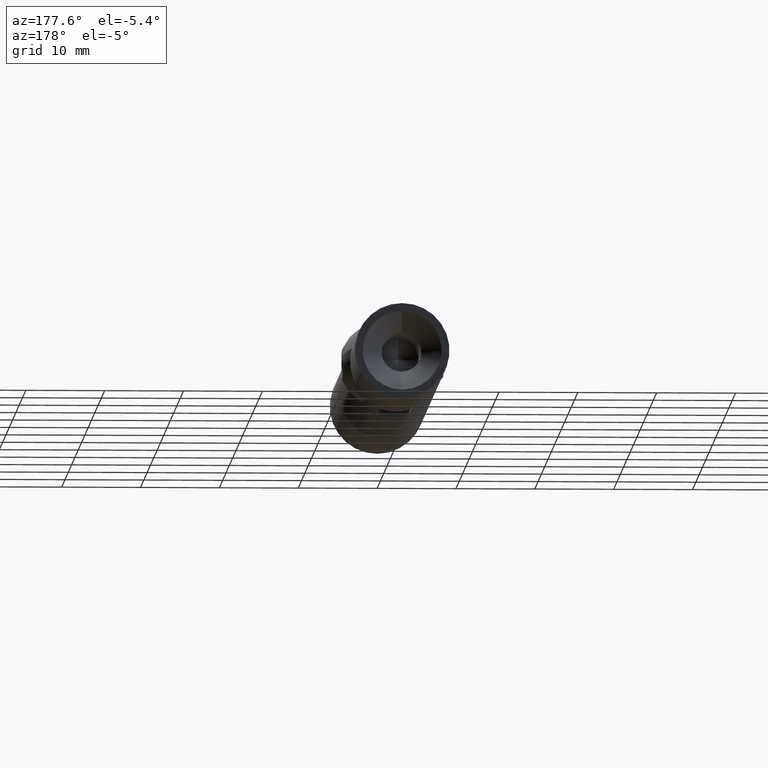
[diagram: clean part render]
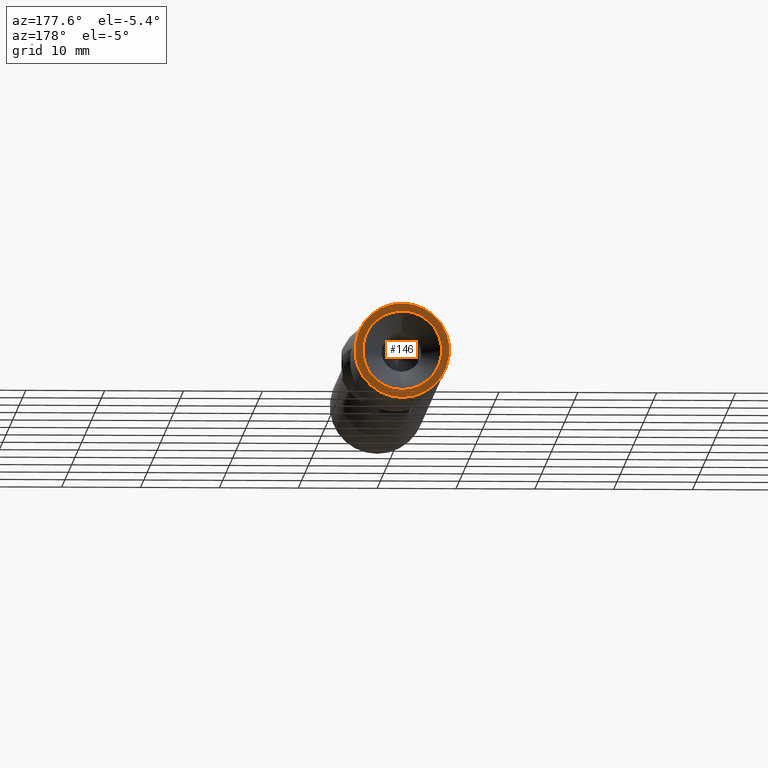
[diagram: same view with one face highlighted and labeled with its STEP entity id]
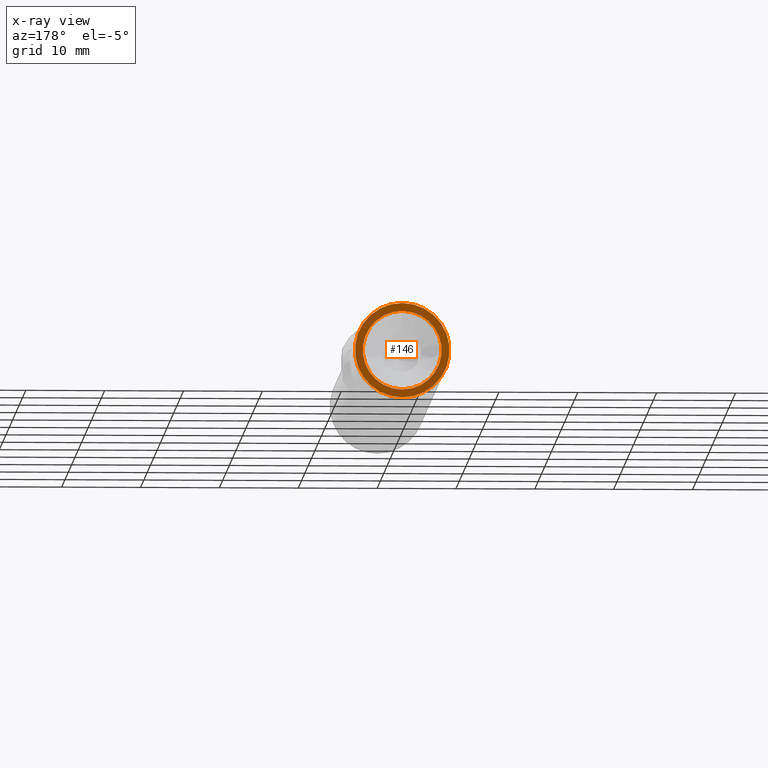
[diagram: x-ray of the same camera — body ghosted, the highlighted face saturated]
A machine part, auxiliary view. The second image highlights one B-rep face of the part: STEP entity #146.
The next image is the same camera in x-ray: the body ghosted, the highlighted face saturated — about 0% of this face is hidden behind the body in this view.
In plain terms, the highlighted planar face has unit normal (0, 1, -0).
Its self-contained STEP definition (entity closure, byte-faithful):
#146 = ADVANCED_FACE ( 'NONE', ( #450, #12626 ), #3208, .T. ) ;
#150 = AXIS2_PLACEMENT_3D ( 'NONE', #12198, #14807, #7144 ) ;
#450 = FACE_BOUND ( 'NONE', #14000, .T. ) ;
#518 = CARTESIAN_POINT ( 'NONE',  ( 0.0000000000000000000, 25.49999999999999600, 0.0000000000000000000 ) ) ;
#2140 = AXIS2_PLACEMENT_3D ( 'NONE', #518, #9687, #13339 ) ;
#2307 = AXIS2_PLACEMENT_3D ( 'NONE', #8566, #5872, #10951 ) ;
#3208 = PLANE ( 'NONE',  #150 ) ;
#3467 = CARTESIAN_POINT ( 'NONE',  ( 0.0000000000000000000, 25.49999999999999600, 0.0000000000000000000 ) ) ;
#4090 = VERTEX_POINT ( 'NONE', #13478 ) ;
#4943 = DIRECTION ( 'NONE',  ( 6.270394377842564300E-033, 1.000000000000000000, -5.200459125639017200E-051 ) ) ;
#5182 = EDGE_LOOP ( 'NONE', ( #13796, #5191 ) ) ;
#5191 = ORIENTED_EDGE ( 'NONE', *, *, #6338, .T. ) ;
#5551 = CIRCLE ( 'NONE', #16053, 5.000000000000000000 ) ;
#5872 = DIRECTION ( 'NONE',  ( 6.270394377842564300E-033, 1.000000000000000000, -5.200459125639017200E-051 ) ) ;
#6338 = EDGE_CURVE ( 'NONE', #6796, #4090, #7069, .T. ) ;
#6796 = VERTEX_POINT ( 'NONE', #14665 ) ;
#7069 = CIRCLE ( 'NONE', #2307, 6.000000000000000900 ) ;
#7140 = CARTESIAN_POINT ( 'NONE',  ( 0.0000000000000000000, 25.49999999999999600, 0.0000000000000000000 ) ) ;
#7144 = DIRECTION ( 'NONE',  ( -2.696301922142130200E-033, 8.701279117450272000E-052, 1.000000000000000000 ) ) ;
#7789 = VERTEX_POINT ( 'NONE', #9923 ) ;
#8460 = DIRECTION ( 'NONE',  ( 6.270394377842564300E-033, 1.000000000000000000, -5.200459125639017200E-051 ) ) ;
#8566 = CARTESIAN_POINT ( 'NONE',  ( 0.0000000000000000000, 25.49999999999999600, 0.0000000000000000000 ) ) ;
#8778 = EDGE_CURVE ( 'NONE', #4090, #6796, #12987, .T. ) ;
#9687 = DIRECTION ( 'NONE',  ( 6.270394377842564300E-033, 1.000000000000000000, -5.200459125639017200E-051 ) ) ;
#9772 = DIRECTION ( 'NONE',  ( -2.696301922142130200E-033, 0.0000000000000000000, 1.000000000000000000 ) ) ;
#9923 = CARTESIAN_POINT ( 'NONE',  ( 6.123233995736766300E-016, 25.49999999999999600, -5.000000000000000000 ) ) ;
#10951 = DIRECTION ( 'NONE',  ( -2.696301922142130200E-033, 0.0000000000000000000, 1.000000000000000000 ) ) ;
#12198 = CARTESIAN_POINT ( 'NONE',  ( 0.0000000000000000000, 25.49999999999999600, 0.0000000000000000000 ) ) ;
#12349 = AXIS2_PLACEMENT_3D ( 'NONE', #3467, #4943, #13851 ) ;
#12512 = CIRCLE ( 'NONE', #2140, 5.000000000000000000 ) ;
#12626 = FACE_OUTER_BOUND ( 'NONE', #5182, .T. ) ;
#12987 = CIRCLE ( 'NONE', #12349, 6.000000000000000900 ) ;
#13087 = ORIENTED_EDGE ( 'NONE', *, *, #15147, .F. ) ;
#13112 = EDGE_CURVE ( 'NONE', #15093, #7789, #12512, .T. ) ;
#13339 = DIRECTION ( 'NONE',  ( -2.696301922142130200E-033, 0.0000000000000000000, 1.000000000000000000 ) ) ;
#13478 = CARTESIAN_POINT ( 'NONE',  ( -4.495853365111217700E-032, 25.49999999999999600, -6.000000000000000900 ) ) ;
#13796 = ORIENTED_EDGE ( 'NONE', *, *, #8778, .T. ) ;
#13851 = DIRECTION ( 'NONE',  ( -2.696301922142130200E-033, 0.0000000000000000000, 1.000000000000000000 ) ) ;
#14000 = EDGE_LOOP ( 'NONE', ( #15266, #13087 ) ) ;
#14665 = CARTESIAN_POINT ( 'NONE',  ( 7.347880794884120700E-016, 25.49999999999999600, 6.000000000000000900 ) ) ;
#14807 = DIRECTION ( 'NONE',  ( 6.270394377842564300E-033, 1.000000000000000000, -8.701279117450102800E-052 ) ) ;
#15093 = VERTEX_POINT ( 'NONE', #15920 ) ;
#15147 = EDGE_CURVE ( 'NONE', #7789, #15093, #5551, .T. ) ;
#15266 = ORIENTED_EDGE ( 'NONE', *, *, #13112, .F. ) ;
#15920 = CARTESIAN_POINT ( 'NONE',  ( -1.348150961071065100E-032, 25.49999999999999600, 5.000000000000000000 ) ) ;
#16053 = AXIS2_PLACEMENT_3D ( 'NONE', #7140, #8460, #9772 ) ;